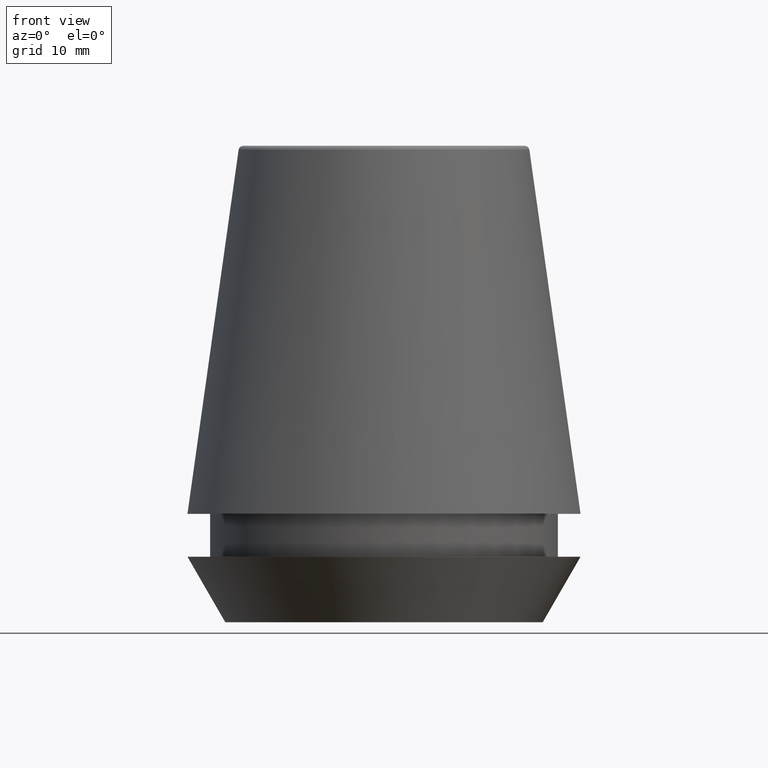
[diagram: clean part render]
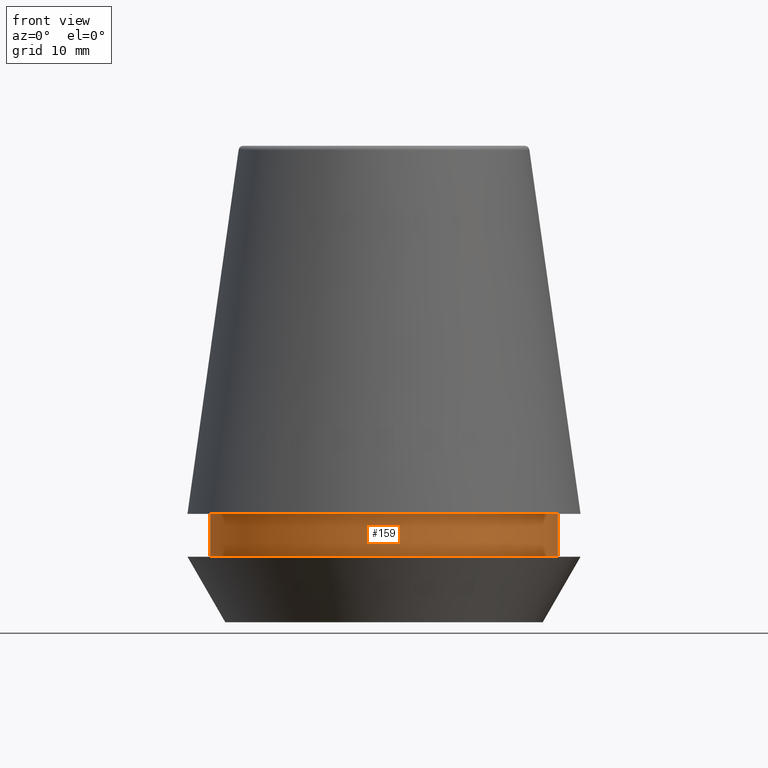
[diagram: same view with one face highlighted and labeled with its STEP entity id]
A machine part, front view. The second image highlights one B-rep face of the part: STEP entity #159.
In plain terms, the highlighted cylindrical surface (partial cylindrical patch) has radius 14.6 mm, axis along (-0, -0, 1).
Its self-contained STEP definition (entity closure, byte-faithful):
#17 = DIRECTION ( 'NONE',  ( -0.0000000000000000000, -0.0000000000000000000, 1.000000000000000000 ) ) ;
#20 = CARTESIAN_POINT ( 'NONE',  ( 14.60000000000000000, 0.0000000000000000000, 9.099999999999997900 ) ) ;
#30 = CARTESIAN_POINT ( 'NONE',  ( -14.60000000000000000, 1.787984326755135800E-015, 5.500000000000005300 ) ) ;
#41 = DIRECTION ( 'NONE',  ( 1.000000000000000000, 0.0000000000000000000, 0.0000000000000000000 ) ) ;
#43 = CARTESIAN_POINT ( 'NONE',  ( -14.60000000000000000, 1.787984326755135800E-015, 101.8074564848000400 ) ) ;
#54 = CARTESIAN_POINT ( 'NONE',  ( 0.0000000000000000000, 0.0000000000000000000, 101.8074564848000400 ) ) ;
#55 = VERTEX_POINT ( 'NONE', #30 ) ;
#58 = VECTOR ( 'NONE', #271, 1000.000000000000000 ) ;
#70 = CYLINDRICAL_SURFACE ( 'NONE', #150, 14.60000000000000000 ) ;
#79 = AXIS2_PLACEMENT_3D ( 'NONE', #186, #17, #41 ) ;
#81 = VECTOR ( 'NONE', #90, 1000.000000000000000 ) ;
#90 = DIRECTION ( 'NONE',  ( -0.0000000000000000000, -0.0000000000000000000, 1.000000000000000000 ) ) ;
#117 = DIRECTION ( 'NONE',  ( -0.0000000000000000000, -0.0000000000000000000, 1.000000000000000000 ) ) ;
#128 = EDGE_CURVE ( 'NONE', #55, #373, #275, .T. ) ;
#134 = CARTESIAN_POINT ( 'NONE',  ( 14.60000000000000000, 0.0000000000000000000, 5.500000000000005300 ) ) ;
#145 = FACE_OUTER_BOUND ( 'NONE', #333, .T. ) ;
#148 = CARTESIAN_POINT ( 'NONE',  ( 14.60000000000000000, 0.0000000000000000000, 101.8074564848000400 ) ) ;
#150 = AXIS2_PLACEMENT_3D ( 'NONE', #54, #359, #176 ) ;
#159 = ADVANCED_FACE ( 'NONE', ( #145 ), #70, .T. ) ;
#167 = VERTEX_POINT ( 'NONE', #208 ) ;
#173 = EDGE_CURVE ( 'NONE', #373, #340, #175, .T. ) ;
#175 = LINE ( 'NONE', #148, #58 ) ;
#176 = DIRECTION ( 'NONE',  ( 1.000000000000000000, 0.0000000000000000000, 0.0000000000000000000 ) ) ;
#186 = CARTESIAN_POINT ( 'NONE',  ( 0.0000000000000000000, 0.0000000000000000000, 9.099999999999997900 ) ) ;
#208 = CARTESIAN_POINT ( 'NONE',  ( -14.60000000000000000, 1.787984326755135800E-015, 9.099999999999997900 ) ) ;
#225 = AXIS2_PLACEMENT_3D ( 'NONE', #386, #117, #330 ) ;
#239 = CIRCLE ( 'NONE', #79, 14.60000000000000000 ) ;
#258 = EDGE_CURVE ( 'NONE', #167, #340, #239, .T. ) ;
#271 = DIRECTION ( 'NONE',  ( -0.0000000000000000000, -0.0000000000000000000, 1.000000000000000000 ) ) ;
#274 = ORIENTED_EDGE ( 'NONE', *, *, #128, .T. ) ;
#275 = CIRCLE ( 'NONE', #225, 14.60000000000000000 ) ;
#299 = EDGE_CURVE ( 'NONE', #55, #167, #322, .T. ) ;
#308 = ORIENTED_EDGE ( 'NONE', *, *, #299, .F. ) ;
#319 = ORIENTED_EDGE ( 'NONE', *, *, #258, .F. ) ;
#322 = LINE ( 'NONE', #43, #81 ) ;
#330 = DIRECTION ( 'NONE',  ( 1.000000000000000000, 0.0000000000000000000, 0.0000000000000000000 ) ) ;
#333 = EDGE_LOOP ( 'NONE', ( #308, #274, #366, #319 ) ) ;
#340 = VERTEX_POINT ( 'NONE', #20 ) ;
#359 = DIRECTION ( 'NONE',  ( -0.0000000000000000000, -0.0000000000000000000, 1.000000000000000000 ) ) ;
#366 = ORIENTED_EDGE ( 'NONE', *, *, #173, .T. ) ;
#373 = VERTEX_POINT ( 'NONE', #134 ) ;
#386 = CARTESIAN_POINT ( 'NONE',  ( 0.0000000000000000000, 0.0000000000000000000, 5.500000000000005300 ) ) ;